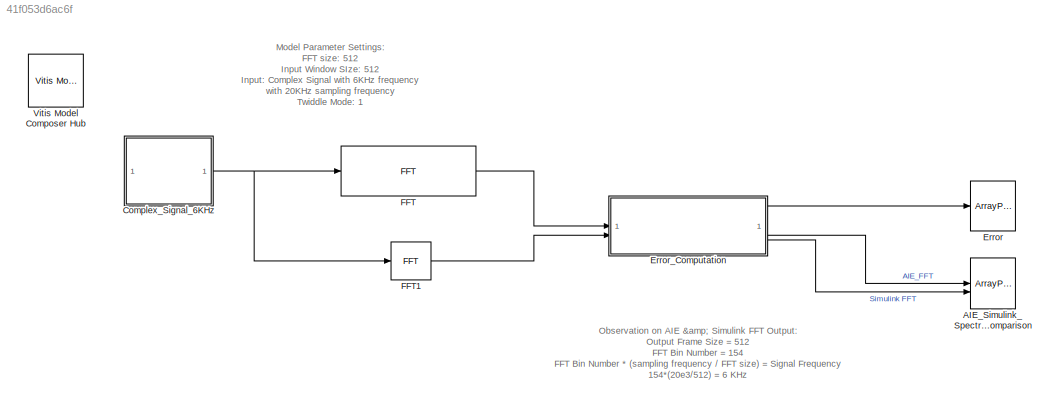
MODEL slx_41f053d6ac6f
KIND model
CONFIG AbsTol = auto
CONFIG EnableMultiTasking = off
CONFIG FixedStep = auto
CONFIG MaxStep = auto
CONFIG MinStep = auto
CONFIG RelTol = 1e-3
CONFIG SampleTimeConstraint = Unconstrained
CONFIG SolverName = VariableStepAuto
CONFIG StartTime = 0.0
CONFIG StopTime = 10.0
BLOCK [ArrayPlot] AIE_Simulink_SpectrumComparison
  AxesScaling = Manual
  GraphicalSettings = {"Style":{"BackgroundColor":[0.15686274509803921,0.15686274509803921,0.15686274509803921],"AxesColor":[0,0,0],"LabelsColor":[0.68627450980392157,0.68627450980392157,0.68627450980392157],"PreserveColors":false,"Visible":[true,true],"LineStyle":["-","-"],"LineColor":[[1,1,0.066666666666666666],[0.074509803921568626,0.62352941176470589,1]],"LineWidth":[1.5,1.5],"Marker":["none","none"],"FontSize":"sm...<+509ch>
  NumInputPorts = 2
  PlotType = Line
  ScopeFrameLocation = window
  ShowLegend = on
  Visible = on
  WasSavedAsWebScope = on
  WindowPosition = [83.000000,185.000000,845.000000,423.000000,]
  YLimits = [-100,1100]
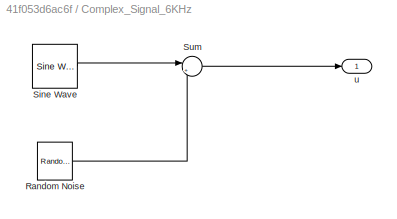
BLOCK [SubSystem] Complex_Signal_6KHz
BLOCK [Reference] Complex_Signal_6KHz/Random Noise  REF=dspobslib/Random
Source
  SourceBlock = dspobslib/Random\nSource
  SourceType = Random Source Obsolete
  UserDataPersistent = on
BLOCK [Reference] Complex_Signal_6KHz/Sine Wave  REF=dspsrcs4/Sine Wave
  SourceBlock = dspsrcs4/Sine Wave
  SourceType = Sine Wave
BLOCK [Sum] Complex_Signal_6KHz/Sum
  Inputs = |++
BLOCK [Outport] Complex_Signal_6KHz/u
BLOCK [ArrayPlot] Error
  GraphicalSettings = {"Style":{"BackgroundColor":[0.15686274509803921,0.15686274509803921,0.15686274509803921],"AxesColor":[0,0,0],"LabelsColor":[0.68627450980392157,0.68627450980392157,0.68627450980392157],"PreserveColors":false,"Visible":true,"LineStyle":["-"],"LineColor":[1,1,0.066666666666666666],"LineWidth":1.5,"Marker":["o"],"FontSize":"small"},"Cursors":{"Enabled":false,"XLocation":[2,8],"YLocation":[2,8],"Snap...<+437ch>
  ScopeFrameLocation = window
  Visible = on
  WasSavedAsWebScope = on
  WindowPosition = [240.000000,110.000000,800.000000,500.000000,]
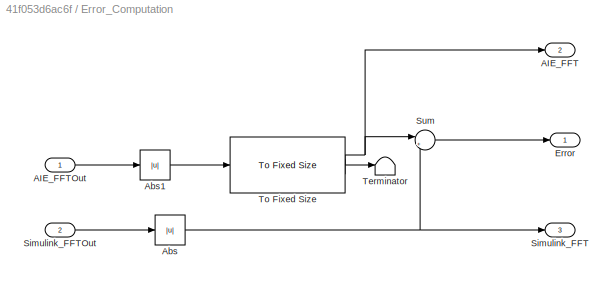
BLOCK [SubSystem] Error_Computation
BLOCK [Outport] Error_Computation/AIE_FFT
  Port = 2
BLOCK [Inport] Error_Computation/AIE_FFTOut
BLOCK [Abs] Error_Computation/Abs
  SaturateOnIntegerOverflow = off
BLOCK [Abs] Error_Computation/Abs1
  SaturateOnIntegerOverflow = off
BLOCK [Outport] Error_Computation/Error
BLOCK [Outport] Error_Computation/Simulink_FFT
  Port = 3
BLOCK [Inport] Error_Computation/Simulink_FFTOut
  Port = 2
BLOCK [Sum] Error_Computation/Sum
  AccumDataTypeStr = int32
  Inputs = |+-
BLOCK [Terminator] Error_Computation/Terminator
BLOCK [Reference] Error_Computation/To Fixed Size  REF=aieUtilities/To Fixed Size
  SourceBlock = aieUtilities/To Fixed Size
  SourceType = To Fixed Size
BLOCK [Reference] FFT  REF=aieDSP/FFT
  SourceBlock = aieDSP/FFT
  SourceType = FFT
BLOCK [Reference] FFT1  REF=dspxfrm3/FFT
  SourceBlock = dspxfrm3/FFT
  SourceType = FFT
BLOCK [Reference] Vitis Model Composer Hub  REF=vmcUtilities/Vitis Model Composer Hub
  SourceBlock = vmcUtilities/Vitis Model Composer Hub
  SourceType = VMC Hub
  Tag = genX
  UserDataPersistent = on
ANNOTATION (root): Model Parameter Settings: FFT size: 512 Input Window SIze: 512 Input: Complex Signal with 6KHz frequency with 20KHz sampling frequency Twiddle Mode: 1
ANNOTATION (root): Observation on AIE & Simulink FFT Output: Output Frame Size = 512 FFT Bin Number = 154 FFT Bin Number * (sampling frequency / FFT size) = Signal Frequency 154*(20e3/512) = 6 KHz
LINE Complex_Signal_6KHz/Random Noise:1 -> Complex_Signal_6KHz/Sum:2
LINE Complex_Signal_6KHz/Sine Wave:1 -> Complex_Signal_6KHz/Sum:1
LINE Complex_Signal_6KHz/Sum:1 -> Complex_Signal_6KHz/u:1
NET Complex_Signal_6KHz:1 -> FFT1:1, FFT:1
LINE Error_Computation/AIE_FFTOut:1 -> Error_Computation/Abs1:1
LINE Error_Computation/Abs1:1 -> Error_Computation/To Fixed Size:1
NET Error_Computation/Abs:1 -> Error_Computation/Simulink_FFT:1, Error_Computation/Sum:2
LINE Error_Computation/Simulink_FFTOut:1 -> Error_Computation/Abs:1
LINE Error_Computation/Sum:1 -> Error_Computation/Error:1
NET Error_Computation/To Fixed Size:1 -> Error_Computation/AIE_FFT:1, Error_Computation/Sum:1
LINE Error_Computation/To Fixed Size:2 -> Error_Computation/Terminator:1
LINE Error_Computation:1 -> Error:1
LINE Error_Computation:2 -> AIE_Simulink_SpectrumComparison:1
LINE Error_Computation:3 -> AIE_Simulink_SpectrumComparison:2
LINE FFT1:1 -> Error_Computation:2
LINE FFT:1 -> Error_Computation:1
note: NET lines group one-source signal fan-out (src -> all destinations, sorted); 1:1 wires keep LINE
